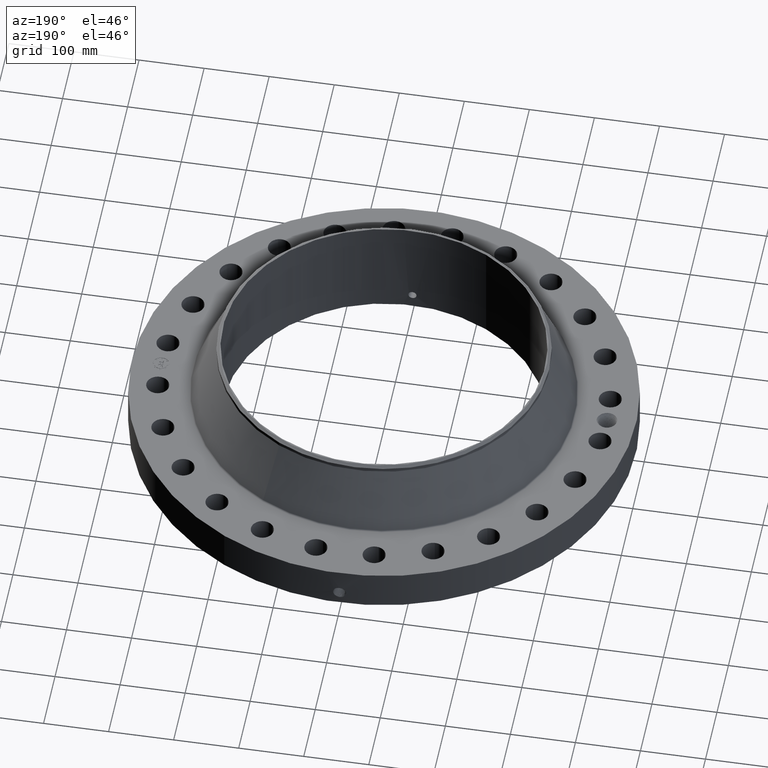
[diagram: clean part render]
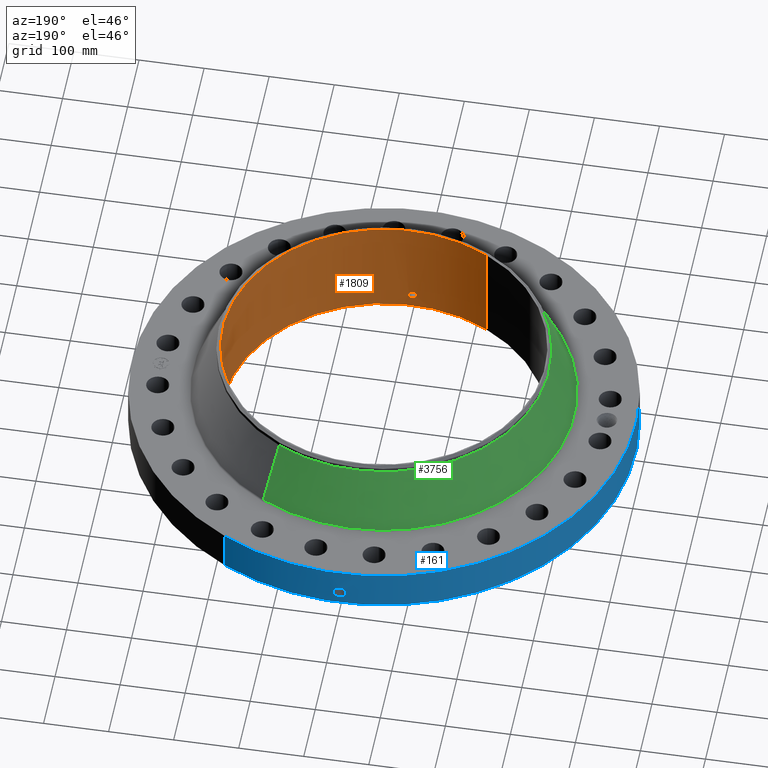
[diagram: same view with three faces highlighted in distinct colors, each labeled with its STEP entity id]
A machine part, auxiliary view with three faces highlighted in distinct colors.
Their STEP definitions:

[orange] entity #1809 — the highlighted cylindrical surface (partial cylindrical patch) has radius 247.65 mm, axis along (0, 0, -1).
#258=AXIS2_PLACEMENT_3D('Circle Axis2P3D',#256,#257,$) ;
#1740=AXIS2_PLACEMENT_3D('Cylinder Axis2P3D',#1737,#1738,#1739) ;
#1744=AXIS2_PLACEMENT_3D('Circle Axis2P3D',#1742,#1743,$) ;
#256=CARTESIAN_POINT('Axis2P3D Location',(0.,0.,0.0600000000002)) ;
#260=CARTESIAN_POINT('Vertex',(4.67439900141,8.55642997847,0.0600000000002)) ;
#262=CARTESIAN_POINT('Vertex',(-4.67439900141,-8.55642997847,0.0600000000002)) ;
#1737=CARTESIAN_POINT('Axis2P3D Location',(0.,0.,3.25000000001)) ;
#1742=CARTESIAN_POINT('Axis2P3D Location',(0.,0.,6.44000000003)) ;
#1746=CARTESIAN_POINT('Vertex',(4.67439900141,8.55642997847,6.44000000003)) ;
#1748=CARTESIAN_POINT('Vertex',(-4.67439900141,-8.55642997847,6.44000000003)) ;
#1751=CARTESIAN_POINT('Line Origine',(4.67439900141,8.55642997847,3.25000000001)) ;
#1756=CARTESIAN_POINT('Line Origine',(-4.67439900141,-8.55642997847,3.25000000001)) ;
#1768=CARTESIAN_POINT('Control Point',(0.219395640473,-9.74753125431,0.820143615352)) ;
#1769=CARTESIAN_POINT('Control Point',(0.194442898524,-9.74809288603,0.77446792759)) ;
#1770=CARTESIAN_POINT('Control Point',(0.157604712294,-9.74884214693,0.735287680674)) ;
#1771=CARTESIAN_POINT('Control Point',(0.111106567451,-9.74957085037,0.706756306244)) ;
#1772=CARTESIAN_POINT('Control Point',(0.0336712214662,-9.75015062135,0.68411710642)) ;
#1773=CARTESIAN_POINT('Control Point',(-0.0446736669947,-9.74995025307,0.691943982572)) ;
#1774=CARTESIAN_POINT('Control Point',(-0.0703041570981,-9.74979470742,0.697957063747)) ;
#1775=CARTESIAN_POINT('Control Point',(-0.143961199219,-9.74910736012,0.725790774492)) ;
#1776=CARTESIAN_POINT('Control Point',(-0.203249380173,-9.74798546212,0.780508459008)) ;
#1777=CARTESIAN_POINT('Control Point',(-0.232213577168,-9.74724968436,0.826749817727)) ;
#1778=CARTESIAN_POINT('Control Point',(-0.255841176935,-9.74664491075,0.904895695709)) ;
#1779=CARTESIAN_POINT('Control Point',(-0.248281598017,-9.74683824784,0.984258136374)) ;
#1780=CARTESIAN_POINT('Control Point',(-0.242047849594,-9.74699998843,1.01081873178)) ;
#1781=CARTESIAN_POINT('Control Point',(-0.232314747808,-9.74724047342,1.0362081173)) ;
#1782=CARTESIAN_POINT('Control Point',(-0.219395640473,-9.74753125431,1.05985638466)) ;
#1783=CARTESIAN_POINT('Vertex',(0.219395640473,-9.74753125431,0.820143615352)) ;
#1785=CARTESIAN_POINT('Vertex',(-0.219395640473,-9.74753125431,1.05985638466)) ;
#1789=CARTESIAN_POINT('Control Point',(-0.219395640473,-9.74753125431,1.05985638466)) ;
#1790=CARTESIAN_POINT('Control Point',(-0.194442898513,-9.74809288603,1.10553207244)) ;
#1791=CARTESIAN_POINT('Control Point',(-0.157604712263,-9.74884214693,1.14471231937)) ;
#1792=CARTESIAN_POINT('Control Point',(-0.111106567496,-9.74957085037,1.17324369375)) ;
#1793=CARTESIAN_POINT('Control Point',(-0.0336712214877,-9.75015062135,1.19588289359)) ;
#1794=CARTESIAN_POINT('Control Point',(0.0446736669977,-9.74995025307,1.18805601744)) ;
#1795=CARTESIAN_POINT('Control Point',(0.0703041570914,-9.74979470742,1.18204293626)) ;
#1796=CARTESIAN_POINT('Control Point',(0.143961199266,-9.74910736012,1.1542092255)) ;
#1797=CARTESIAN_POINT('Control Point',(0.203249380254,-9.74798546212,1.09949154092)) ;
#1798=CARTESIAN_POINT('Control Point',(0.232213577135,-9.74724968436,1.05325018239)) ;
#1799=CARTESIAN_POINT('Control Point',(0.255841176927,-9.74664491075,0.975104304396)) ;
#1800=CARTESIAN_POINT('Control Point',(0.248281598026,-9.74683824784,0.895741863718)) ;
#1801=CARTESIAN_POINT('Control Point',(0.242047849564,-9.74699998843,0.869181268148)) ;
#1802=CARTESIAN_POINT('Control Point',(0.232314747789,-9.74724047342,0.843791882668)) ;
#1803=CARTESIAN_POINT('Control Point',(0.219395640473,-9.74753125431,0.820143615352)) ;
#257=DIRECTION('Axis2P3D Direction',(0.,0.,-0.0393700787402)) ;
#1738=DIRECTION('Axis2P3D Direction',(0.,0.,-0.0393700787402)) ;
#1739=DIRECTION('Axis2P3D XDirection',(-0.0188750212049,-0.0345504945626,0.)) ;
#1743=DIRECTION('Axis2P3D Direction',(0.,0.,-0.0393700787402)) ;
#1752=DIRECTION('Vector Direction',(0.,0.,-0.0393700787402)) ;
#1757=DIRECTION('Vector Direction',(0.,0.,-0.0393700787402)) ;
#1753=VECTOR('Line Direction',#1752,0.0393700787402) ;
#1758=VECTOR('Line Direction',#1757,0.0393700787402) ;
#1762=ORIENTED_EDGE('',*,*,#1750,.F.) ;
#1763=ORIENTED_EDGE('',*,*,#1755,.T.) ;
#1764=ORIENTED_EDGE('',*,*,#264,.T.) ;
#1765=ORIENTED_EDGE('',*,*,#1760,.F.) ;
#1806=ORIENTED_EDGE('',*,*,#1787,.F.) ;
#1807=ORIENTED_EDGE('',*,*,#1804,.F.) ;
#1808=FACE_BOUND('',#1805,.T.) ;
#1809=ADVANCED_FACE('PartBody',(#1766,#1808),#1741,.F.) ;
#1767=B_SPLINE_CURVE_WITH_KNOTS('',5,(#1768,#1769,#1770,#1771,#1772,#1773,#1774,#1775,#1776,#1777,#1778,#1779,#1780,#1781,#1782),.UNSPECIFIED.,.F.,.U.,(6,3,3,3,6),(0.,9.34848235935,14.022932061,23.3729733334,28.213084583),.UNSPECIFIED.) ;
#1788=B_SPLINE_CURVE_WITH_KNOTS('',5,(#1789,#1790,#1791,#1792,#1793,#1794,#1795,#1796,#1797,#1798,#1799,#1800,#1801,#1802,#1803),.UNSPECIFIED.,.F.,.U.,(6,3,3,3,6),(0.,9.34848236325,14.0229320654,23.3729733475,28.2130845897),.UNSPECIFIED.) ;
#259=CIRCLE('generated circle',#258,9.75000000004) ;
#1745=CIRCLE('generated circle',#1744,9.75000000004) ;
#1741=CYLINDRICAL_SURFACE('generated cylinder',#1740,9.75000000004) ;
#264=EDGE_CURVE('',#261,#263,#259,.T.) ;
#1750=EDGE_CURVE('',#1747,#1749,#1745,.T.) ;
#1755=EDGE_CURVE('',#1747,#261,#1754,.T.) ;
#1760=EDGE_CURVE('',#1749,#263,#1759,.T.) ;
#1787=EDGE_CURVE('',#1784,#1786,#1767,.T.) ;
#1804=EDGE_CURVE('',#1786,#1784,#1788,.T.) ;
#1761=EDGE_LOOP('',(#1762,#1763,#1764,#1765)) ;
#1805=EDGE_LOOP('',(#1806,#1807)) ;
#1766=FACE_OUTER_BOUND('',#1761,.T.) ;
#1754=LINE('Line',#1751,#1753) ;
#1759=LINE('Line',#1756,#1758) ;
#261=VERTEX_POINT('',#260) ;
#263=VERTEX_POINT('',#262) ;
#1747=VERTEX_POINT('',#1746) ;
#1749=VERTEX_POINT('',#1748) ;
#1784=VERTEX_POINT('',#1783) ;
#1786=VERTEX_POINT('',#1785) ;

[blue] entity #161 — the highlighted cylindrical surface (partial cylindrical patch) has radius 387.35 mm, axis along (0, 0, -1).
#38=AXIS2_PLACEMENT_3D('Cylinder Axis2P3D',#35,#36,#37) ;
#42=AXIS2_PLACEMENT_3D('Circle Axis2P3D',#40,#41,$) ;
#58=AXIS2_PLACEMENT_3D('Circle Axis2P3D',#56,#57,$) ;
#35=CARTESIAN_POINT('Axis2P3D Location',(0.,0.,3.25000000001)) ;
#40=CARTESIAN_POINT('Axis2P3D Location',(0.,0.,0.0600000000002)) ;
#44=CARTESIAN_POINT('Vertex',(-7.31123946374,-13.3831340689,0.0600000000002)) ;
#46=CARTESIAN_POINT('Vertex',(7.31123946374,13.3831340689,0.0600000000002)) ;
#49=CARTESIAN_POINT('Line Origine',(-7.31123946374,-13.3831340689,1.31000000001)) ;
#53=CARTESIAN_POINT('Vertex',(-7.31123946374,-13.3831340689,2.56000000001)) ;
#56=CARTESIAN_POINT('Axis2P3D Location',(0.,0.,2.56000000001)) ;
#60=CARTESIAN_POINT('Vertex',(7.31123946374,13.3831340689,2.56000000001)) ;
#63=CARTESIAN_POINT('Line Origine',(7.31123946374,13.3831340689,1.31000000001)) ;
#75=CARTESIAN_POINT('Control Point',(-0.000716049760247,15.2499999833,1.29411846129)) ;
#76=CARTESIAN_POINT('Control Point',(-0.0189701072486,15.2499991261,1.29408159437)) ;
#77=CARTESIAN_POINT('Control Point',(-0.0372209751321,15.2499652355,1.29262936671)) ;
#78=CARTESIAN_POINT('Control Point',(-0.0552509399604,15.2498999123,1.28977927812)) ;
#79=CARTESIAN_POINT('Vertex',(-0.000715697200088,15.2499999833,1.29411851055)) ;
#81=CARTESIAN_POINT('Vertex',(-0.055242138106,15.2499001965,1.28978068759)) ;
#85=CARTESIAN_POINT('Control Point',(-0.0552420427631,15.2498999445,1.28978014022)) ;
#86=CARTESIAN_POINT('Control Point',(-0.095698156942,15.2497533942,1.28536268072)) ;
#87=CARTESIAN_POINT('Control Point',(-0.135516524696,15.2494419834,1.27358724126)) ;
#88=CARTESIAN_POINT('Control Point',(-0.172195687342,15.2490277935,1.25523274047)) ;
#89=CARTESIAN_POINT('Vertex',(-0.172195687342,15.2490277935,1.25523274047)) ;
#93=CARTESIAN_POINT('Control Point',(-0.0310152642592,15.2499684608,0.53118928844)) ;
#94=CARTESIAN_POINT('Control Point',(-0.096182337904,15.2498359245,0.539436739118)) ;
#95=CARTESIAN_POINT('Control Point',(-0.159294043279,15.2493594722,0.561293751232)) ;
#96=CARTESIAN_POINT('Control Point',(-0.216401136754,15.2485887094,0.596098828465)) ;
#97=CARTESIAN_POINT('Control Point',(-0.288819771437,15.2473275345,0.664189974679)) ;
#98=CARTESIAN_POINT('Control Point',(-0.336428392688,15.2462994751,0.748671469104)) ;
#99=CARTESIAN_POINT('Control Point',(-0.349472605851,15.2460004619,0.778732969869)) ;
#100=CARTESIAN_POINT('Control Point',(-0.371687708321,15.2454753168,0.848970817339)) ;
#101=CARTESIAN_POINT('Control Point',(-0.377175372883,15.2453335918,0.922141203018)) ;
#102=CARTESIAN_POINT('Control Point',(-0.37491028849,15.2453911791,0.96294795216)) ;
#103=CARTESIAN_POINT('Control Point',(-0.356496036752,15.245851249,1.06072433207)) ;
#104=CARTESIAN_POINT('Control Point',(-0.308136792152,15.2469313731,1.14794325755)) ;
#105=CARTESIAN_POINT('Control Point',(-0.269818079892,15.2477093271,1.19323963329)) ;
#106=CARTESIAN_POINT('Control Point',(-0.22353577884,15.2484480489,1.22954180686)) ;
#107=CARTESIAN_POINT('Control Point',(-0.172195687342,15.2490277935,1.25523274047)) ;
#108=CARTESIAN_POINT('Vertex',(-0.0310152642592,15.2499684608,0.53118928844)) ;
#112=CARTESIAN_POINT('Control Point',(-0.0310152642592,15.2499684608,0.53118928844)) ;
#113=CARTESIAN_POINT('Control Point',(-0.0206719752859,15.2499894969,0.53087456983)) ;
#114=CARTESIAN_POINT('Control Point',(-0.0103211166376,15.2500000019,0.530936539703)) ;
#115=CARTESIAN_POINT('Control Point',(2.72878355969E-006,15.2500000001,0.531374667806)) ;
#116=CARTESIAN_POINT('Vertex',(2.72878354271E-006,15.2500000001,0.531374667806)) ;
#120=CARTESIAN_POINT('Control Point',(0.192625061438,15.2487834134,0.58741326924)) ;
#121=CARTESIAN_POINT('Control Point',(0.149005457565,15.2493344231,0.562040395763)) ;
#122=CARTESIAN_POINT('Control Point',(0.1011163867,15.2497737091,0.543779824757)) ;
#123=CARTESIAN_POINT('Control Point',(0.0508056148376,15.249999991,0.533530663288)) ;
#124=CARTESIAN_POINT('Control Point',(2.72878353261E-006,15.2500000001,0.531374667806)) ;
#125=CARTESIAN_POINT('Vertex',(0.192625061438,15.2487834134,0.58741326924)) ;
#129=CARTESIAN_POINT('Control Point',(0.192625061438,15.2487834134,0.58741326924)) ;
#130=CARTESIAN_POINT('Control Point',(0.2494537832,15.2480655439,0.620469688995)) ;
#131=CARTESIAN_POINT('Control Point',(0.299509163502,15.2471684596,0.664842822376)) ;
#132=CARTESIAN_POINT('Control Point',(0.339645810447,15.2462572537,0.718973028951)) ;
#133=CARTESIAN_POINT('Control Point',(0.383846820921,15.2451782415,0.817171323272)) ;
#134=CARTESIAN_POINT('Control Point',(0.392394948557,15.2449495023,0.92245643258)) ;
#135=CARTESIAN_POINT('Control Point',(0.39026829482,15.2450057477,0.962621078101)) ;
#136=CARTESIAN_POINT('Control Point',(0.376095244267,15.2453740937,1.03752589666)) ;
#137=CARTESIAN_POINT('Control Point',(0.343961436371,15.2461332323,1.10595638754)) ;
#138=CARTESIAN_POINT('Control Point',(0.324884519544,15.2465612243,1.13637813139)) ;
#139=CARTESIAN_POINT('Control Point',(0.263167036761,15.2478271655,1.21273609865)) ;
#140=CARTESIAN_POINT('Control Point',(0.180082080177,15.2490857223,1.26567044332)) ;
#141=CARTESIAN_POINT('Control Point',(0.121355009454,15.2497029237,1.28768574767)) ;
#142=CARTESIAN_POINT('Control Point',(0.0601974085615,15.2500001022,1.29710564982)) ;
#143=CARTESIAN_POINT('Control Point',(-2.58579355474E-005,15.25,1.2941529843)) ;
#144=CARTESIAN_POINT('Vertex',(-2.5857935549E-005,15.25,1.2941529843)) ;
#148=CARTESIAN_POINT('Control Point',(-0.000715697190492,15.2499999833,1.29411851054)) ;
#149=CARTESIAN_POINT('Control Point',(-0.000370802107379,15.2499999995,1.29413607216)) ;
#150=CARTESIAN_POINT('Control Point',(-2.5857940579E-005,15.25,1.2941529843)) ;
#36=DIRECTION('Axis2P3D Direction',(0.,0.,-0.0393700787402)) ;
#37=DIRECTION('Axis2P3D XDirection',(0.0188750212049,0.0345504945626,0.)) ;
#41=DIRECTION('Axis2P3D Direction',(0.,0.,-0.0393700787402)) ;
#50=DIRECTION('Vector Direction',(0.,0.,-0.0393700787402)) ;
#57=DIRECTION('Axis2P3D Direction',(0.,0.,-0.0393700787402)) ;
#64=DIRECTION('Vector Direction',(0.,0.,-0.0393700787402)) ;
#51=VECTOR('Line Direction',#50,0.0393700787402) ;
#65=VECTOR('Line Direction',#64,0.0393700787402) ;
#69=ORIENTED_EDGE('',*,*,#48,.F.) ;
#70=ORIENTED_EDGE('',*,*,#55,.T.) ;
#71=ORIENTED_EDGE('',*,*,#62,.T.) ;
#72=ORIENTED_EDGE('',*,*,#67,.F.) ;
#153=ORIENTED_EDGE('',*,*,#83,.T.) ;
#154=ORIENTED_EDGE('',*,*,#91,.T.) ;
#155=ORIENTED_EDGE('',*,*,#110,.F.) ;
#156=ORIENTED_EDGE('',*,*,#118,.T.) ;
#157=ORIENTED_EDGE('',*,*,#127,.F.) ;
#158=ORIENTED_EDGE('',*,*,#146,.T.) ;
#159=ORIENTED_EDGE('',*,*,#151,.F.) ;
#160=FACE_BOUND('',#152,.T.) ;
#161=ADVANCED_FACE('PartBody',(#73,#160),#39,.T.) ;
#74=B_SPLINE_CURVE_WITH_KNOTS('',3,(#75,#76,#77,#78),.UNSPECIFIED.,.F.,.U.,(4,4),(34.6166019999,36.6417164139),.UNSPECIFIED.) ;
#84=B_SPLINE_CURVE_WITH_KNOTS('',3,(#85,#86,#87,#88),.UNSPECIFIED.,.F.,.U.,(4,4),(0.,4.57283024519),.UNSPECIFIED.) ;
#92=B_SPLINE_CURVE_WITH_KNOTS('',5,(#93,#94,#95,#96,#97,#98,#99,#100,#101,#102,#103,#104,#105,#106,#107),.UNSPECIFIED.,.F.,.U.,(6,3,3,3,6),(0.,11.4156301009,17.2563856092,24.6134498538,35.2811566755),.UNSPECIFIED.) ;
#111=B_SPLINE_CURVE_WITH_KNOTS('',3,(#112,#113,#114,#115),.UNSPECIFIED.,.F.,.U.,(4,4),(0.,1.07896259327),.UNSPECIFIED.) ;
#119=B_SPLINE_CURVE_WITH_KNOTS('',4,(#120,#121,#122,#123,#124),.UNSPECIFIED.,.F.,.U.,(5,5),(0.,7.0793276973),.UNSPECIFIED.) ;
#128=B_SPLINE_CURVE_WITH_KNOTS('',5,(#129,#130,#131,#132,#133,#134,#135,#136,#137,#138,#139,#140,#141,#142,#143),.UNSPECIFIED.,.F.,.U.,(6,3,3,3,6),(0.,11.5289086169,18.6079826496,25.0299917237,36.286970213),.UNSPECIFIED.) ;
#147=B_SPLINE_CURVE_WITH_KNOTS('',2,(#148,#149,#150),.UNSPECIFIED.,.F.,.U.,(3,3),(1.021811413,1.04760230385),.UNSPECIFIED.) ;
#43=CIRCLE('generated circle',#42,15.2500000001) ;
#59=CIRCLE('generated circle',#58,15.2500000001) ;
#39=CYLINDRICAL_SURFACE('generated cylinder',#38,15.2500000001) ;
#48=EDGE_CURVE('',#45,#47,#43,.T.) ;
#55=EDGE_CURVE('',#45,#54,#52,.F.) ;
#62=EDGE_CURVE('',#54,#61,#59,.T.) ;
#67=EDGE_CURVE('',#47,#61,#66,.F.) ;
#83=EDGE_CURVE('',#80,#82,#74,.T.) ;
#91=EDGE_CURVE('',#82,#90,#84,.T.) ;
#110=EDGE_CURVE('',#109,#90,#92,.T.) ;
#118=EDGE_CURVE('',#109,#117,#111,.T.) ;
#127=EDGE_CURVE('',#126,#117,#119,.T.) ;
#146=EDGE_CURVE('',#126,#145,#128,.T.) ;
#151=EDGE_CURVE('',#80,#145,#147,.T.) ;
#68=EDGE_LOOP('',(#69,#70,#71,#72)) ;
#152=EDGE_LOOP('',(#153,#154,#155,#156,#157,#158,#159)) ;
#73=FACE_OUTER_BOUND('',#68,.T.) ;
#52=LINE('Line',#49,#51) ;
#66=LINE('Line',#63,#65) ;
#45=VERTEX_POINT('',#44) ;
#47=VERTEX_POINT('',#46) ;
#54=VERTEX_POINT('',#53) ;
#61=VERTEX_POINT('',#60) ;
#80=VERTEX_POINT('',#79) ;
#82=VERTEX_POINT('',#81) ;
#90=VERTEX_POINT('',#89) ;
#109=VERTEX_POINT('',#108) ;
#117=VERTEX_POINT('',#116) ;
#126=VERTEX_POINT('',#125) ;
#145=VERTEX_POINT('',#144) ;

[green] entity #3756 — the highlighted conical surface has half-angle 23.948 deg.
#2956=AXIS2_PLACEMENT_3D('Circle Axis2P3D',#2954,#2955,$) ;
#3717=AXIS2_PLACEMENT_3D('Cone Axis2P3D',#3714,#3715,#3716) ;
#3747=AXIS2_PLACEMENT_3D('Circle Axis2P3D',#3745,#3746,$) ;
#2932=CARTESIAN_POINT('Vertex',(5.52697895817,10.1170671211,2.63129081759)) ;
#2939=CARTESIAN_POINT('Vertex',(-5.52697895817,-10.1170671211,2.63129081759)) ;
#2954=CARTESIAN_POINT('Axis2P3D Location',(0.,0.,2.63129081759)) ;
#3714=CARTESIAN_POINT('Axis2P3D Location',(0.,0.,6.07236722846)) ;
#3719=CARTESIAN_POINT('Line Origine',(5.16061717212,9.44644637002,4.35182902303)) ;
#3723=CARTESIAN_POINT('Vertex',(4.79425538606,8.77582561894,6.07236722846)) ;
#3730=CARTESIAN_POINT('Vertex',(-4.79425538606,-8.77582561894,6.07236722846)) ;
#3733=CARTESIAN_POINT('Line Origine',(-5.16061717212,-9.44644637002,4.35182902303)) ;
#3745=CARTESIAN_POINT('Axis2P3D Location',(0.,0.,6.07236722846)) ;
#2955=DIRECTION('Axis2P3D Direction',(0.,0.,-0.0393700787402)) ;
#3715=DIRECTION('Axis2P3D Direction',(0.,0.,-0.0393700787402)) ;
#3716=DIRECTION('Axis2P3D XDirection',(-0.0188750212049,-0.0345504945626,0.)) ;
#3720=DIRECTION('Vector Direction',(0.00766155709209,0.0140243861863,-0.0359808314944)) ;
#3734=DIRECTION('Vector Direction',(-0.00766155709209,-0.0140243861863,-0.0359808314944)) ;
#3746=DIRECTION('Axis2P3D Direction',(0.,0.,-0.0393700787402)) ;
#3721=VECTOR('Line Direction',#3720,0.0393700787402) ;
#3735=VECTOR('Line Direction',#3734,0.0393700787402) ;
#3751=ORIENTED_EDGE('',*,*,#2958,.F.) ;
#3752=ORIENTED_EDGE('',*,*,#3737,.T.) ;
#3753=ORIENTED_EDGE('',*,*,#3749,.T.) ;
#3754=ORIENTED_EDGE('',*,*,#3725,.F.) ;
#3756=ADVANCED_FACE('PartBody',(#3755),#3718,.T.) ;
#2957=CIRCLE('generated circle',#2956,11.5283365468) ;
#3748=CIRCLE('generated circle',#3747,10.) ;
#3718=CONICAL_SURFACE('Cone',#3717,10.,0.417974168758) ;
#2958=EDGE_CURVE('',#2940,#2933,#2957,.T.) ;
#3725=EDGE_CURVE('',#2933,#3724,#3722,.F.) ;
#3737=EDGE_CURVE('',#2940,#3731,#3736,.F.) ;
#3749=EDGE_CURVE('',#3731,#3724,#3748,.T.) ;
#3750=EDGE_LOOP('',(#3751,#3752,#3753,#3754)) ;
#3755=FACE_OUTER_BOUND('',#3750,.T.) ;
#3722=LINE('Line',#3719,#3721) ;
#3736=LINE('Line',#3733,#3735) ;
#2933=VERTEX_POINT('',#2932) ;
#2940=VERTEX_POINT('',#2939) ;
#3724=VERTEX_POINT('',#3723) ;
#3731=VERTEX_POINT('',#3730) ;